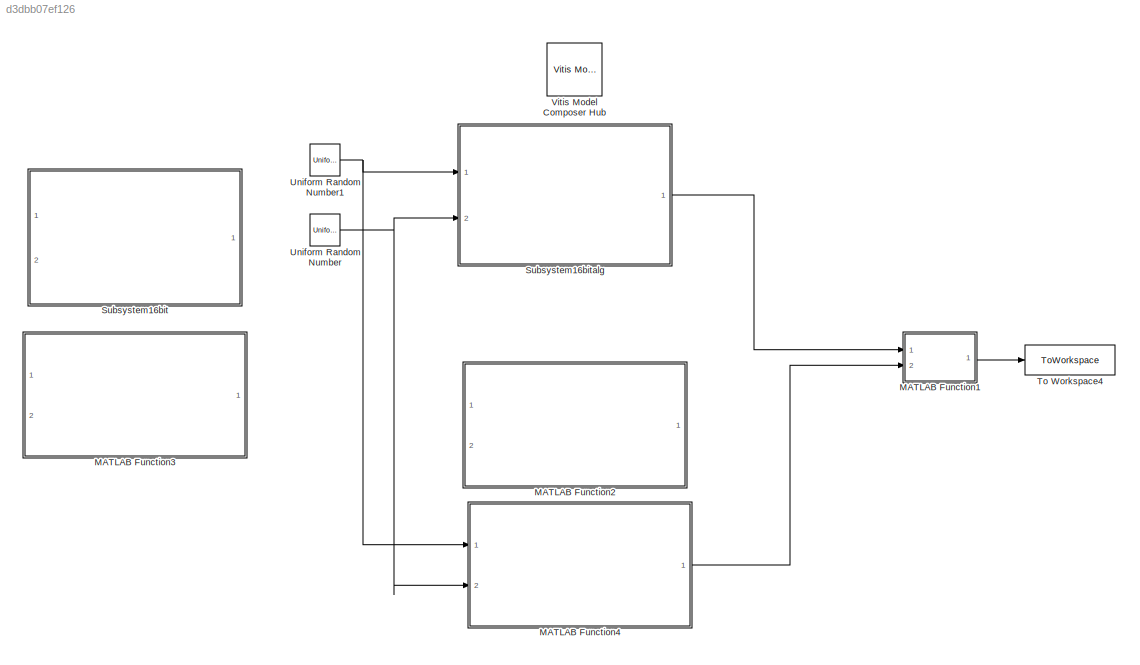
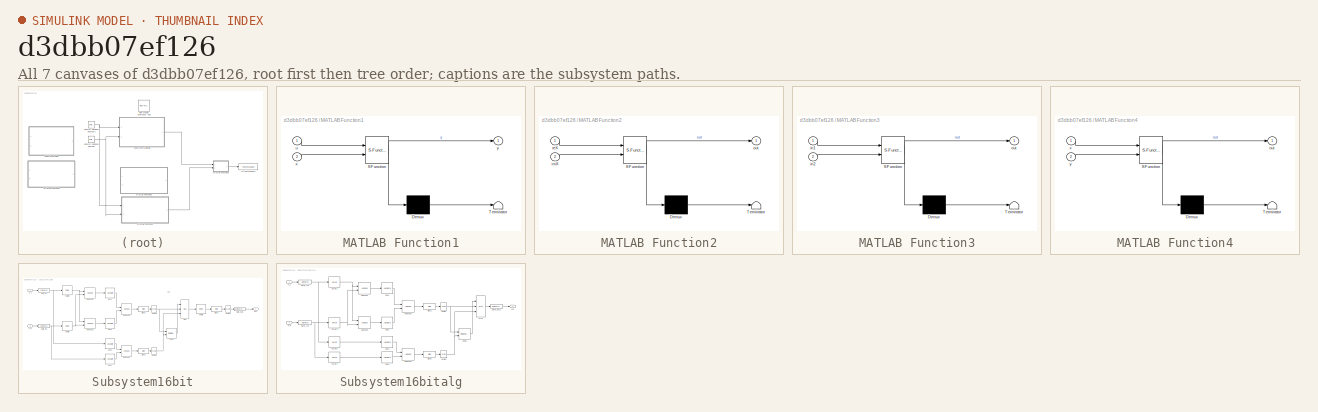
[diagram: thumbnail index - all 7 canvases of the model, root first then tree order]
MODEL slx_d3dbb07ef126
KIND model
CONFIG AbsTol = auto
CONFIG EnableMultiTasking = off
CONFIG FixedStep = auto
CONFIG MaxStep = auto
CONFIG MinStep = auto
CONFIG RelTol = 1e-3
CONFIG SampleTimeConstraint = Unconstrained
CONFIG SolverName = VariableStepAuto
CONFIG StartTime = 0.0
CONFIG StopTime = 99
BLOCK [SubSystem] MATLAB Function1
  ErrorFcn = Stateflow.Translate.translate
  PermitHierarchicalResolution = ExplicitOnly
  Ports = [2, 1]
  RequestExecContextInheritance = off
  SFBlockType = MATLAB Function
  TreatAsAtomicUnit = on
BLOCK [Demux] MATLAB Function1/ Demux 
  Outputs = 1
  Ports = [1, 1]
BLOCK [S-Function] MATLAB Function1/ SFunction 
  EnableBusSupport = on
  FunctionName = sf_sfun
  PortCounts = [2 2]
  Ports = [2, 2]
  SFcnIsStateOwnerBlock = off
  SFunctionDeploymentMode = off
  Tag = Stateflow S-Function 1
BLOCK [Terminator] MATLAB Function1/ Terminator 
BLOCK [Inport] MATLAB Function1/u
BLOCK [Inport] MATLAB Function1/x
  Port = 2
BLOCK [Outport] MATLAB Function1/y
BLOCK [SubSystem] MATLAB Function2
  Commented = on
  ErrorFcn = Stateflow.Translate.translate
  PermitHierarchicalResolution = ExplicitOnly
  Ports = [2, 1]
  RequestExecContextInheritance = off
  SFBlockType = MATLAB Function
  TreatAsAtomicUnit = on
BLOCK [Demux] MATLAB Function2/ Demux 
  Outputs = 1
  Ports = [1, 1]
BLOCK [S-Function] MATLAB Function2/ SFunction 
  EnableBusSupport = on
  FunctionName = sf_sfun
  PortCounts = [2 2]
  Ports = [2, 2]
  SFcnIsStateOwnerBlock = off
  SFunctionDeploymentMode = off
  Tag = Stateflow S-Function 3
BLOCK [Terminator] MATLAB Function2/ Terminator 
BLOCK [Inport] MATLAB Function2/imX
  Port = 2
BLOCK [Outport] MATLAB Function2/out
BLOCK [Inport] MATLAB Function2/reX
BLOCK [SubSystem] MATLAB Function3
  Commented = on
  ErrorFcn = Stateflow.Translate.translate
  PermitHierarchicalResolution = ExplicitOnly
  Ports = [2, 1]
  RequestExecContextInheritance = off
  SFBlockType = MATLAB Function
  TreatAsAtomicUnit = on
BLOCK [Demux] MATLAB Function3/ Demux 
  Outputs = 1
  Ports = [1, 1]
BLOCK [S-Function] MATLAB Function3/ SFunction 
  EnableBusSupport = on
  FunctionName = sf_sfun
  PortCounts = [2 2]
  Ports = [2, 2]
  SFcnIsStateOwnerBlock = off
  SFunctionDeploymentMode = off
  Tag = Stateflow S-Function 4
BLOCK [Terminator] MATLAB Function3/ Terminator 
BLOCK [Inport] MATLAB Function3/in1
BLOCK [Inport] MATLAB Function3/in2
  Port = 2
BLOCK [Outport] MATLAB Function3/out
BLOCK [SubSystem] MATLAB Function4
  ErrorFcn = Stateflow.Translate.translate
  PermitHierarchicalResolution = ExplicitOnly
  Ports = [2, 1]
  RequestExecContextInheritance = off
  SFBlockType = MATLAB Function
  TreatAsAtomicUnit = on
BLOCK [Demux] MATLAB Function4/ Demux 
  Outputs = 1
  Ports = [1, 1]
BLOCK [S-Function] MATLAB Function4/ SFunction 
  EnableBusSupport = on
  FunctionName = sf_sfun
  PortCounts = [2 2]
  Ports = [2, 2]
  SFcnIsStateOwnerBlock = off
  SFunctionDeploymentMode = off
  Tag = Stateflow S-Function 5
BLOCK [Terminator] MATLAB Function4/ Terminator 
BLOCK [Outport] MATLAB Function4/out
BLOCK [Inport] MATLAB Function4/x
BLOCK [Inport] MATLAB Function4/y
  Port = 2
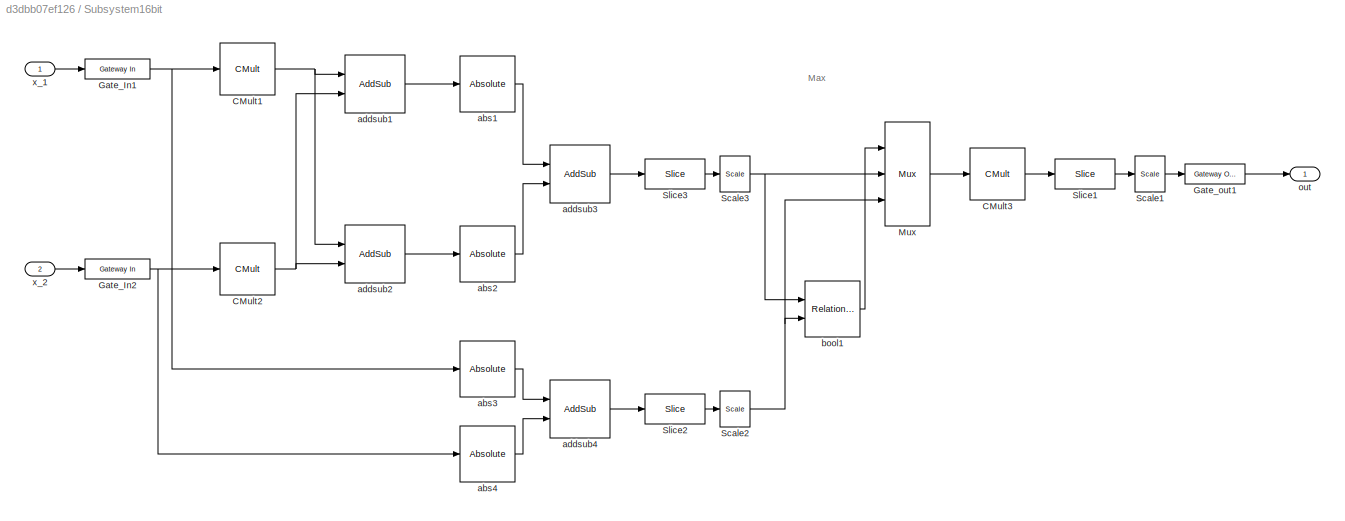
BLOCK [SubSystem] Subsystem16bit
  Commented = on
  Ports = [2, 1]
  RequestExecContextInheritance = off
BLOCK [Reference] Subsystem16bit/CMult1  REF=hdlBasic/CMult
  Ports = [1, 1]
  SourceBlock = hdlBasic/CMult
  SourceType = Constant Multiplier Block
BLOCK [Reference] Subsystem16bit/CMult2  REF=hdlBasic/CMult
  Ports = [1, 1]
  SourceBlock = hdlBasic/CMult
  SourceType = Constant Multiplier Block
BLOCK [Reference] Subsystem16bit/CMult3  REF=hdlBasic/CMult
  Ports = [1, 1]
  SourceBlock = hdlBasic/CMult
  SourceType = Constant Multiplier Block
BLOCK [Reference] Subsystem16bit/Gate_In1  REF=hdlBasic/Gateway In
  Ports = [1, 1]
  SourceBlock = hdlBasic/Gateway In
  SourceType = Gateway In Block
BLOCK [Reference] Subsystem16bit/Gate_In2  REF=hdlBasic/Gateway In
  Ports = [1, 1]
  SourceBlock = hdlBasic/Gateway In
  SourceType = Gateway In Block
BLOCK [Reference] Subsystem16bit/Gate_out1  REF=hdlBasic/Gateway Out
  Ports = [1, 1]
  SourceBlock = hdlBasic/Gateway Out
  SourceType = Gateway Out Block
BLOCK [Reference] Subsystem16bit/Mux  REF=hdlBasic/Mux
  Ports = [3, 1]
  SourceBlock = hdlBasic/Mux
  SourceType = Bus Multiplexer Block
BLOCK [Reference] Subsystem16bit/Scale1  REF=hdlBasic/Scale
  Ports = [1, 1]
  SourceBlock = hdlBasic/Scale
  SourceType = Input Scaler Block
BLOCK [Reference] Subsystem16bit/Scale2  REF=hdlBasic/Scale
  Ports = [1, 1]
  SourceBlock = hdlBasic/Scale
  SourceType = Input Scaler Block
BLOCK [Reference] Subsystem16bit/Scale3  REF=hdlBasic/Scale
  Ports = [1, 1]
  SourceBlock = hdlBasic/Scale
  SourceType = Input Scaler Block
BLOCK [Reference] Subsystem16bit/Slice1  REF=hdlBasic/Slice
  Ports = [1, 1]
  SourceBlock = hdlBasic/Slice
  SourceType = Bit Slice Extractor Block
BLOCK [Reference] Subsystem16bit/Slice2  REF=hdlBasic/Slice
  Ports = [1, 1]
  SourceBlock = hdlBasic/Slice
  SourceType = Bit Slice Extractor Block
BLOCK [Reference] Subsystem16bit/Slice3  REF=hdlBasic/Slice
  Ports = [1, 1]
  SourceBlock = hdlBasic/Slice
  SourceType = Bit Slice Extractor Block
BLOCK [Reference] Subsystem16bit/abs1  REF=hdlBasic/Absolute
  Ports = [1, 1]
  SourceBlock = hdlBasic/Absolute
  SourceType = Absolute Block
BLOCK [Reference] Subsystem16bit/abs2  REF=hdlBasic/Absolute
  Ports = [1, 1]
  SourceBlock = hdlBasic/Absolute
  SourceType = Absolute Block
BLOCK [Reference] Subsystem16bit/abs3  REF=hdlBasic/Absolute
  Ports = [1, 1]
  SourceBlock = hdlBasic/Absolute
  SourceType = Absolute Block
BLOCK [Reference] Subsystem16bit/abs4  REF=hdlBasic/Absolute
  Ports = [1, 1]
  SourceBlock = hdlBasic/Absolute
  SourceType = Absolute Block
BLOCK [Reference] Subsystem16bit/addsub1  REF=hdlBasic/AddSub
  Ports = [2, 1]
  SourceBlock = hdlBasic/AddSub
  SourceType = Adder/Subtracter Block
BLOCK [Reference] Subsystem16bit/addsub2  REF=hdlBasic/AddSub
  Ports = [2, 1]
  SourceBlock = hdlBasic/AddSub
  SourceType = Adder/Subtracter Block
BLOCK [Reference] Subsystem16bit/addsub3  REF=hdlBasic/AddSub
  Ports = [2, 1]
  SourceBlock = hdlBasic/AddSub
  SourceType = Adder/Subtracter Block
BLOCK [Reference] Subsystem16bit/addsub4  REF=hdlBasic/AddSub
  Ports = [2, 1]
  SourceBlock = hdlBasic/AddSub
  SourceType = Adder/Subtracter Block
BLOCK [Reference] Subsystem16bit/bool1  REF=hdlBasic/Relational
  Ports = [2, 1]
  SourceBlock = hdlBasic/Relational
  SourceType = Arithmetic Relational Operator Block
BLOCK [Outport] Subsystem16bit/out
BLOCK [Inport] Subsystem16bit/x_1
BLOCK [Inport] Subsystem16bit/x_2
  Port = 2
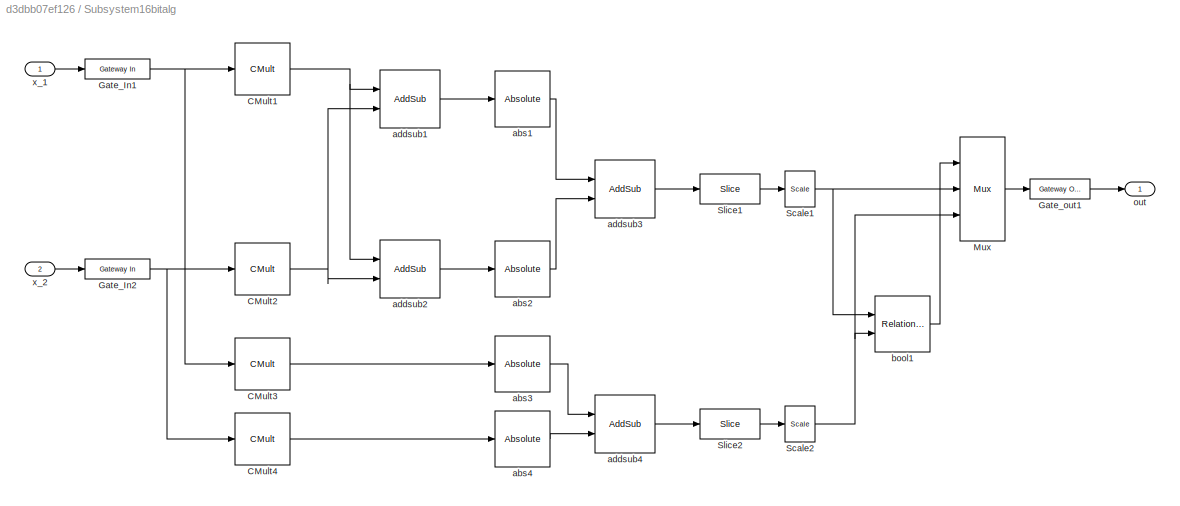
BLOCK [SubSystem] Subsystem16bitalg
  Ports = [2, 1]
  RequestExecContextInheritance = off
BLOCK [Reference] Subsystem16bitalg/CMult1  REF=hdlBasic/CMult
  Ports = [1, 1]
  SourceBlock = hdlBasic/CMult
  SourceType = Constant Multiplier Block
BLOCK [Reference] Subsystem16bitalg/CMult2  REF=hdlBasic/CMult
  Ports = [1, 1]
  SourceBlock = hdlBasic/CMult
  SourceType = Constant Multiplier Block
BLOCK [Reference] Subsystem16bitalg/CMult3  REF=hdlBasic/CMult
  Ports = [1, 1]
  SourceBlock = hdlBasic/CMult
  SourceType = Constant Multiplier Block
BLOCK [Reference] Subsystem16bitalg/CMult4  REF=hdlBasic/CMult
  Ports = [1, 1]
  SourceBlock = hdlBasic/CMult
  SourceType = Constant Multiplier Block
BLOCK [Reference] Subsystem16bitalg/Gate_In1  REF=hdlBasic/Gateway In
  Ports = [1, 1]
  SourceBlock = hdlBasic/Gateway In
  SourceType = Gateway In Block
BLOCK [Reference] Subsystem16bitalg/Gate_In2  REF=hdlBasic/Gateway In
  Ports = [1, 1]
  SourceBlock = hdlBasic/Gateway In
  SourceType = Gateway In Block
BLOCK [Reference] Subsystem16bitalg/Gate_out1  REF=hdlBasic/Gateway Out
  Ports = [1, 1]
  SourceBlock = hdlBasic/Gateway Out
  SourceType = Gateway Out Block
BLOCK [Reference] Subsystem16bitalg/Mux  REF=hdlBasic/Mux
  Ports = [3, 1]
  SourceBlock = hdlBasic/Mux
  SourceType = Bus Multiplexer Block
BLOCK [Reference] Subsystem16bitalg/Scale1  REF=hdlBasic/Scale
  Ports = [1, 1]
  SourceBlock = hdlBasic/Scale
  SourceType = Input Scaler Block
BLOCK [Reference] Subsystem16bitalg/Scale2  REF=hdlBasic/Scale
  Ports = [1, 1]
  SourceBlock = hdlBasic/Scale
  SourceType = Input Scaler Block
BLOCK [Reference] Subsystem16bitalg/Slice1  REF=hdlBasic/Slice
  Ports = [1, 1]
  SourceBlock = hdlBasic/Slice
  SourceType = Bit Slice Extractor Block
BLOCK [Reference] Subsystem16bitalg/Slice2  REF=hdlBasic/Slice
  Ports = [1, 1]
  SourceBlock = hdlBasic/Slice
  SourceType = Bit Slice Extractor Block
BLOCK [Reference] Subsystem16bitalg/abs1  REF=hdlBasic/Absolute
  Ports = [1, 1]
  SourceBlock = hdlBasic/Absolute
  SourceType = Absolute Block
BLOCK [Reference] Subsystem16bitalg/abs2  REF=hdlBasic/Absolute
  Ports = [1, 1]
  SourceBlock = hdlBasic/Absolute
  SourceType = Absolute Block
BLOCK [Reference] Subsystem16bitalg/abs3  REF=hdlBasic/Absolute
  Ports = [1, 1]
  SourceBlock = hdlBasic/Absolute
  SourceType = Absolute Block
BLOCK [Reference] Subsystem16bitalg/abs4  REF=hdlBasic/Absolute
  Ports = [1, 1]
  SourceBlock = hdlBasic/Absolute
  SourceType = Absolute Block
BLOCK [Reference] Subsystem16bitalg/addsub1  REF=hdlBasic/AddSub
  Ports = [2, 1]
  SourceBlock = hdlBasic/AddSub
  SourceType = Adder/Subtracter Block
BLOCK [Reference] Subsystem16bitalg/addsub2  REF=hdlBasic/AddSub
  Ports = [2, 1]
  SourceBlock = hdlBasic/AddSub
  SourceType = Adder/Subtracter Block
BLOCK [Reference] Subsystem16bitalg/addsub3  REF=hdlBasic/AddSub
  Ports = [2, 1]
  SourceBlock = hdlBasic/AddSub
  SourceType = Adder/Subtracter Block
BLOCK [Reference] Subsystem16bitalg/addsub4  REF=hdlBasic/AddSub
  Ports = [2, 1]
  SourceBlock = hdlBasic/AddSub
  SourceType = Adder/Subtracter Block
BLOCK [Reference] Subsystem16bitalg/bool1  REF=hdlBasic/Relational
  Ports = [2, 1]
  SourceBlock = hdlBasic/Relational
  SourceType = Arithmetic Relational Operator Block
BLOCK [Outport] Subsystem16bitalg/out
BLOCK [Inport] Subsystem16bitalg/x_1
BLOCK [Inport] Subsystem16bitalg/x_2
  Port = 2
BLOCK [ToWorkspace] To Workspace4
  FixptAsFi = on
  MaxDataPoints = inf
  Ports = [1]
  SampleTime = -1
  Save2DSignal = 2-D array (concatenate along first dimension)
  SaveFormat = Structure With Time
  VariableName = mse
BLOCK [UniformRandomNumber] Uniform Random Number
  Maximum = 0.9
  Minimum = -0.9
  SampleTime = 1
BLOCK [UniformRandomNumber] Uniform Random Number1
  Maximum = 0.9
  Minimum = -0.9
  SampleTime = 1
  Seed = 1
BLOCK [Reference] Vitis Model Composer Hub  REF=vmcUtilities/Vitis Model Composer Hub
  Ports = []
  SourceBlock = vmcUtilities/Vitis Model Composer Hub
  SourceType = Implementation
  Tag = genX
  UserDataPersistent = on
ANNOTATION Subsystem16bit: Max
LINE MATLAB Function1:1 -> To Workspace4:1
LINE MATLAB Function4:1 -> MATLAB Function1:2
NET Subsystem16bit/CMult1:1 -> Subsystem16bit/addsub1:1, Subsystem16bit/addsub2:1
NET Subsystem16bit/CMult2:1 -> Subsystem16bit/addsub1:2, Subsystem16bit/addsub2:2
LINE Subsystem16bit/CMult3:1 -> Subsystem16bit/Slice1:1
NET Subsystem16bit/Gate_In1:1 -> Subsystem16bit/CMult1:1, Subsystem16bit/abs3:1
NET Subsystem16bit/Gate_In2:1 -> Subsystem16bit/CMult2:1, Subsystem16bit/abs4:1
LINE Subsystem16bit/Gate_out1:1 -> Subsystem16bit/out:1
LINE Subsystem16bit/Mux:1 -> Subsystem16bit/CMult3:1
LINE Subsystem16bit/Scale1:1 -> Subsystem16bit/Gate_out1:1
NET Subsystem16bit/Scale2:1 -> Subsystem16bit/Mux:3, Subsystem16bit/bool1:2
NET Subsystem16bit/Scale3:1 -> Subsystem16bit/Mux:2, Subsystem16bit/bool1:1
LINE Subsystem16bit/Slice1:1 -> Subsystem16bit/Scale1:1
LINE Subsystem16bit/Slice2:1 -> Subsystem16bit/Scale2:1
LINE Subsystem16bit/Slice3:1 -> Subsystem16bit/Scale3:1
LINE Subsystem16bit/abs1:1 -> Subsystem16bit/addsub3:1
LINE Subsystem16bit/abs2:1 -> Subsystem16bit/addsub3:2
LINE Subsystem16bit/abs3:1 -> Subsystem16bit/addsub4:1
LINE Subsystem16bit/abs4:1 -> Subsystem16bit/addsub4:2
LINE Subsystem16bit/addsub1:1 -> Subsystem16bit/abs1:1
LINE Subsystem16bit/addsub2:1 -> Subsystem16bit/abs2:1
LINE Subsystem16bit/addsub3:1 -> Subsystem16bit/Slice3:1
LINE Subsystem16bit/addsub4:1 -> Subsystem16bit/Slice2:1
LINE Subsystem16bit/bool1:1 -> Subsystem16bit/Mux:1
LINE Subsystem16bit/x_1:1 -> Subsystem16bit/Gate_In1:1
LINE Subsystem16bit/x_2:1 -> Subsystem16bit/Gate_In2:1
NET Subsystem16bitalg/CMult1:1 -> Subsystem16bitalg/addsub1:1, Subsystem16bitalg/addsub2:1
NET Subsystem16bitalg/CMult2:1 -> Subsystem16bitalg/addsub1:2, Subsystem16bitalg/addsub2:2
LINE Subsystem16bitalg/CMult3:1 -> Subsystem16bitalg/abs3:1
LINE Subsystem16bitalg/CMult4:1 -> Subsystem16bitalg/abs4:1
NET Subsystem16bitalg/Gate_In1:1 -> Subsystem16bitalg/CMult1:1, Subsystem16bitalg/CMult3:1
NET Subsystem16bitalg/Gate_In2:1 -> Subsystem16bitalg/CMult2:1, Subsystem16bitalg/CMult4:1
LINE Subsystem16bitalg/Gate_out1:1 -> Subsystem16bitalg/out:1
LINE Subsystem16bitalg/Mux:1 -> Subsystem16bitalg/Gate_out1:1
NET Subsystem16bitalg/Scale1:1 -> Subsystem16bitalg/Mux:2, Subsystem16bitalg/bool1:1
NET Subsystem16bitalg/Scale2:1 -> Subsystem16bitalg/Mux:3, Subsystem16bitalg/bool1:2
LINE Subsystem16bitalg/Slice1:1 -> Subsystem16bitalg/Scale1:1
LINE Subsystem16bitalg/Slice2:1 -> Subsystem16bitalg/Scale2:1
LINE Subsystem16bitalg/abs1:1 -> Subsystem16bitalg/addsub3:1
LINE Subsystem16bitalg/abs2:1 -> Subsystem16bitalg/addsub3:2
LINE Subsystem16bitalg/abs3:1 -> Subsystem16bitalg/addsub4:1
LINE Subsystem16bitalg/abs4:1 -> Subsystem16bitalg/addsub4:2
LINE Subsystem16bitalg/addsub1:1 -> Subsystem16bitalg/abs1:1
LINE Subsystem16bitalg/addsub2:1 -> Subsystem16bitalg/abs2:1
LINE Subsystem16bitalg/addsub3:1 -> Subsystem16bitalg/Slice1:1
LINE Subsystem16bitalg/addsub4:1 -> Subsystem16bitalg/Slice2:1
LINE Subsystem16bitalg/bool1:1 -> Subsystem16bitalg/Mux:1
LINE Subsystem16bitalg/x_1:1 -> Subsystem16bitalg/Gate_In1:1
LINE Subsystem16bitalg/x_2:1 -> Subsystem16bitalg/Gate_In2:1
LINE Subsystem16bitalg:1 -> MATLAB Function1:1
NET Uniform Random Number1:1 -> MATLAB Function4:1, Subsystem16bitalg:1
NET Uniform Random Number:1 -> MATLAB Function4:2, Subsystem16bitalg:2
note: NET lines group one-source signal fan-out (src -> all destinations, sorted); 1:1 wires keep LINE
CHART MATLAB Function2 states=1 transitions=1
  STATE_LABEL 'eML_blk_kernel()'
  STATE_LABEL 'SCRIPT:\nfunction out = abssq04(reX,imX)\n\n% COS_PI_0 = 1/sqrt(2)*cos(0);\n% SIN_PI_4 = 1/sqrt(2)*sin(pi/4);\n% COS_PI_4 = 1/sqrt(2)*cos(pi/4);\n% \n% % theta = 0\n% a0 = abs(COS_PI_0*in1) + abs(COS_PI_0*in2);\n% % theta = pi/4\n% a1 = abs(COS_PI_4*in1 - SIN_PI_4*in2) ...\n%     + abs(SIN_PI_4*in1 + COS_PI_4*in2);\n\nSQRT_2 = 1/sqrt(2);\nCOS_PI_4 = SQRT_2*cos(pi/4);\nSIN_PI_4 = SQRT_2*sin(pi/4);\n\n% theta = 0\na0...<+158ch>'
CHART MATLAB Function3 states=1 transitions=1
  STATE_LABEL 'eML_blk_kernel()'
  STATE_LABEL 'SCRIPT:\nfunction out = abssq04(in1,in2)\n\nSIN_PI_4 = sin(pi/4);\nCOS_PI_4 = sin(pi/4);\n\n% theta = 0\na0 = abs(in1) + abs(in2);\n% theta = pi/4\na1 = abs(COS_PI_4*in1 - SIN_PI_4*in2) ...\n    + abs(SIN_PI_4*in1 + COS_PI_4*in2);\n\n\nout = (1/sqrt(2)).*max(a0, a1);\n\nend'
CHART MATLAB Function4 states=1 transitions=1
  STATE_LABEL 'eML_blk_kernel()'
  STATE_LABEL 'SCRIPT:\nfunction out = fcn(x,y)\nout = sqrt(x.^2 + y.^2);\n'
CHART MATLAB Function1 states=1 transitions=1
  STATE_LABEL 'eML_blk_kernel()'
  STATE_LABEL 'SCRIPT:\nfunction y = fcn(u,x)\ny = immse(u,x);\n'
CHART  states=0 transitions=0
CHART  states=0 transitions=0
CHART  states=0 transitions=0
CHART  states=0 transitions=0
